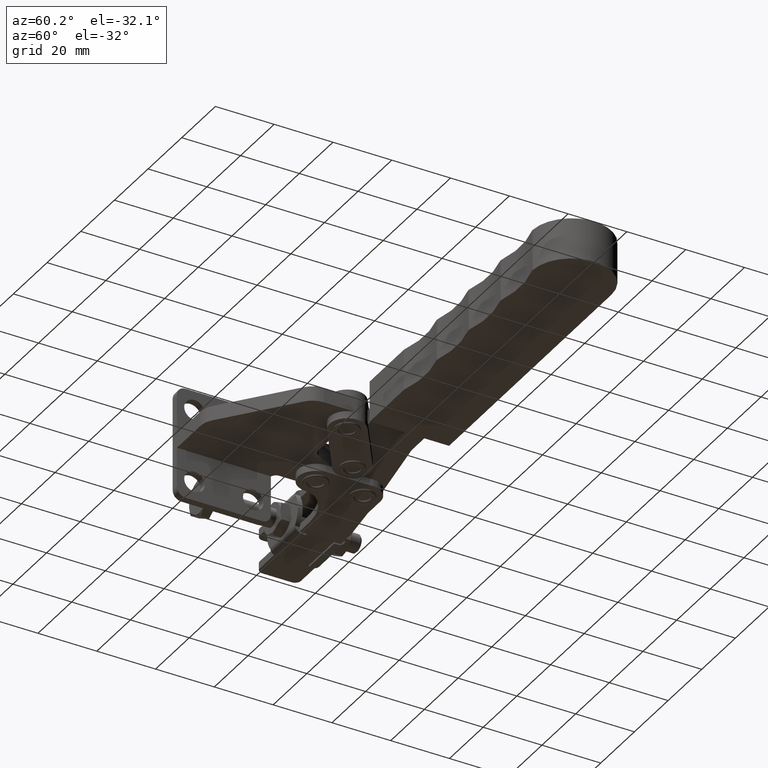
[diagram: clean part render]
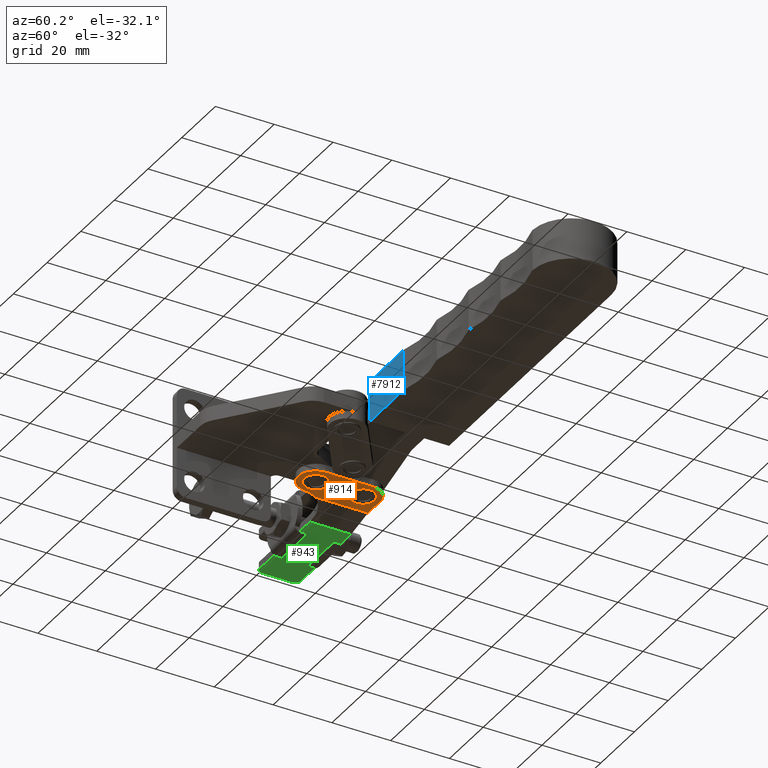
[diagram: same view with three faces highlighted in distinct colors, each labeled with its STEP entity id]
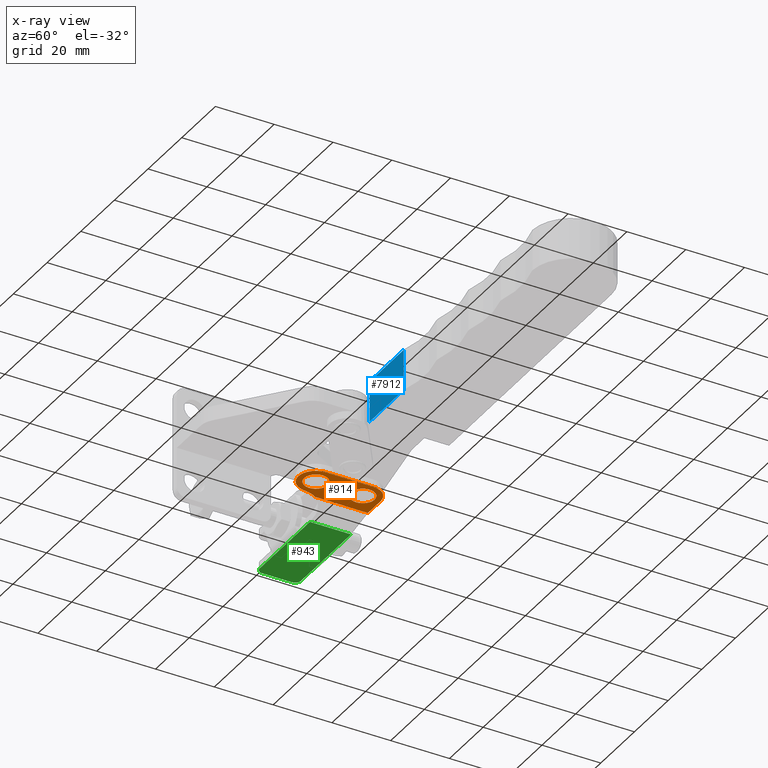
[diagram: x-ray of the same camera — body ghosted, the three highlighted faces saturated]
A machine part, auxiliary view with three faces highlighted in distinct colors.
The next image is the same camera in x-ray (body ghosted, the three faces saturated) — at least one of them is partly hidden behind the body in this view.
Their STEP definitions:

[orange] entity #914 — the highlighted planar face has unit normal (-0, -0, 1).
#131 = AXIS2_PLACEMENT_3D ( 'NONE', #2588, #7631, #7378 ) ;
#272 = VERTEX_POINT ( 'NONE', #4152 ) ;
#439 = ORIENTED_EDGE ( 'NONE', *, *, #2890, .F. ) ;
#461 = VERTEX_POINT ( 'NONE', #4128 ) ;
#523 = ORIENTED_EDGE ( 'NONE', *, *, #9479, .F. ) ;
#610 = LINE ( 'NONE', #6844, #9451 ) ;
#914 = ADVANCED_FACE ( 'NONE', ( #8964, #945, #5301 ), #9612, .F. ) ;
#945 = FACE_OUTER_BOUND ( 'NONE', #7038, .T. ) ;
#1327 = EDGE_CURVE ( 'NONE', #2943, #2703, #5539, .T. ) ;
#1363 = CARTESIAN_POINT ( 'NONE',  ( 10.00000000000408200, 43.00000000000160600, -5.000000000001120000 ) ) ;
#1426 = VERTEX_POINT ( 'NONE', #4352 ) ;
#1461 = ORIENTED_EDGE ( 'NONE', *, *, #1327, .F. ) ;
#1463 = AXIS2_PLACEMENT_3D ( 'NONE', #4239, #3604, #6598 ) ;
#1594 = ORIENTED_EDGE ( 'NONE', *, *, #7895, .T. ) ;
#1701 = EDGE_CURVE ( 'NONE', #9554, #1426, #2281, .T. ) ;
#1925 = DIRECTION ( 'NONE',  ( -0.9999999996937321000, 2.474946245861751200E-005, -1.460058925613811300E-014 ) ) ;
#2001 = DIRECTION ( 'NONE',  ( -1.464944035411824900E-014, -3.812519792265744100E-017, 1.000000000000000000 ) ) ;
#2046 = AXIS2_PLACEMENT_3D ( 'NONE', #9986, #2001, #5801 ) ;
#2186 = VERTEX_POINT ( 'NONE', #5302 ) ;
#2263 = CARTESIAN_POINT ( 'NONE',  ( 10.00054448817817000, 64.99999999326384200, -5.000000000001120000 ) ) ;
#2275 = EDGE_LOOP ( 'NONE', ( #4613, #523 ) ) ;
#2279 = DIRECTION ( 'NONE',  ( 1.464944035411830900E-014, 3.812519792265743500E-017, -1.000000000000000000 ) ) ;
#2281 = CIRCLE ( 'NONE', #5759, 6.000000000000018700 ) ;
#2550 = DIRECTION ( 'NONE',  ( -2.474946245868171700E-005, -0.9999999996937321000, -3.848776368506596200E-017 ) ) ;
#2588 = CARTESIAN_POINT ( 'NONE',  ( 10.00000000000315800, 43.00000000000179100, -5.000000000001121800 ) ) ;
#2601 = VERTEX_POINT ( 'NONE', #7783 ) ;
#2703 = VERTEX_POINT ( 'NONE', #5463 ) ;
#2790 = CIRCLE ( 'NONE', #1463, 8.999999999999925400 ) ;
#2890 = EDGE_CURVE ( 'NONE', #2703, #2943, #9564, .T. ) ;
#2943 = VERTEX_POINT ( 'NONE', #5451 ) ;
#3044 = DIRECTION ( 'NONE',  ( 1.464944035411830900E-014, 3.812519792265743500E-017, -1.000000000000000000 ) ) ;
#3218 = LINE ( 'NONE', #8006, #7070 ) ;
#3263 = DIRECTION ( 'NONE',  ( 1.464944035411830900E-014, 3.812519792265743500E-017, -1.000000000000000000 ) ) ;
#3291 = EDGE_CURVE ( 'NONE', #6960, #9554, #610, .T. ) ;
#3345 = ORIENTED_EDGE ( 'NONE', *, *, #5014, .F. ) ;
#3359 = CIRCLE ( 'NONE', #131, 4.000000000000000000 ) ;
#3604 = DIRECTION ( 'NONE',  ( -1.464944035411830900E-014, -3.812519792265743500E-017, 1.000000000000000000 ) ) ;
#3725 = CARTESIAN_POINT ( 'NONE',  ( 10.00039599140219300, 58.99999999510152500, -5.000000000001121800 ) ) ;
#3741 = DIRECTION ( 'NONE',  ( 1.000000000000000000, 0.0000000000000000000, 1.474514954580286000E-014 ) ) ;
#4128 = CARTESIAN_POINT ( 'NONE',  ( 2.500099615977045900, 47.02506802696223100, -5.000000000001230100 ) ) ;
#4152 = CARTESIAN_POINT ( 'NONE',  ( 14.00000000000315800, 43.00000000000179100, -5.000000000001062300 ) ) ;
#4177 = ORIENTED_EDGE ( 'NONE', *, *, #3291, .T. ) ;
#4239 = CARTESIAN_POINT ( 'NONE',  ( -4.966654291970205500, 42.00037041634398300, -5.000000000001342000 ) ) ;
#4352 = CARTESIAN_POINT ( 'NONE',  ( 16.00039598956583500, 58.99985149832662800, -5.000000000001034700 ) ) ;
#4392 = AXIS2_PLACEMENT_3D ( 'NONE', #1363, #3263, #1925 ) ;
#4487 = DIRECTION ( 'NONE',  ( 1.464944035411830900E-014, 3.812519792265743500E-017, -1.000000000000000000 ) ) ;
#4608 = CARTESIAN_POINT ( 'NONE',  ( 2.500544490475105500, 65.00018561423220800, -5.000000000001231000 ) ) ;
#4613 = ORIENTED_EDGE ( 'NONE', *, *, #5731, .F. ) ;
#4782 = CARTESIAN_POINT ( 'NONE',  ( 10.00039599140219300, 58.99999999510152500, -5.000000000001121800 ) ) ;
#4953 = CARTESIAN_POINT ( 'NONE',  ( 2.500544490475105500, 65.00018561423220800, -5.000000000001231000 ) ) ;
#5001 = DIRECTION ( 'NONE',  ( -2.474946245868171700E-005, -0.9999999996937321000, -3.848776368506596200E-017 ) ) ;
#5014 = EDGE_CURVE ( 'NONE', #6960, #461, #5514, .T. ) ;
#5301 = FACE_BOUND ( 'NONE', #7183, .T. ) ;
#5302 = CARTESIAN_POINT ( 'NONE',  ( 6.000000000003159300, 43.00000000000179100, -5.000000000001180400 ) ) ;
#5451 = CARTESIAN_POINT ( 'NONE',  ( 14.00039599140219300, 58.99999999510152500, -5.000000000001062300 ) ) ;
#5463 = CARTESIAN_POINT ( 'NONE',  ( 6.000395991402193400, 58.99999999510152500, -5.000000000001180400 ) ) ;
#5480 = VECTOR ( 'NONE', #5001, 1000.000000000000000 ) ;
#5514 = LINE ( 'NONE', #4953, #5480 ) ;
#5539 = CIRCLE ( 'NONE', #9996, 4.000000000000000000 ) ;
#5570 = DIRECTION ( 'NONE',  ( 1.464944035411830900E-014, 3.812519792265743500E-017, -1.000000000000000000 ) ) ;
#5731 = EDGE_CURVE ( 'NONE', #272, #2186, #3359, .T. ) ;
#5759 = AXIS2_PLACEMENT_3D ( 'NONE', #8847, #3044, #7872 ) ;
#5801 = DIRECTION ( 'NONE',  ( -0.9999999996937321000, 2.474946245868171700E-005, -1.464943940605344000E-014 ) ) ;
#5922 = EDGE_CURVE ( 'NONE', #2601, #461, #2790, .T. ) ;
#6598 = DIRECTION ( 'NONE',  ( -0.9999999996937319900, 2.474946246247267800E-005, -1.464877601935982600E-014 ) ) ;
#6755 = ORIENTED_EDGE ( 'NONE', *, *, #9835, .T. ) ;
#6844 = CARTESIAN_POINT ( 'NONE',  ( 2.500544490475105500, 65.00018561423220800, -5.000000000001231000 ) ) ;
#6960 = VERTEX_POINT ( 'NONE', #4608 ) ;
#7029 = ORIENTED_EDGE ( 'NONE', *, *, #5922, .T. ) ;
#7038 = EDGE_LOOP ( 'NONE', ( #8185, #6755, #1594, #7029, #3345, #4177 ) ) ;
#7070 = VECTOR ( 'NONE', #2550, 1000.000000000000000 ) ;
#7183 = EDGE_LOOP ( 'NONE', ( #1461, #439 ) ) ;
#7378 = DIRECTION ( 'NONE',  ( 1.000000000000000000, 0.0000000000000000000, 1.474514954580286000E-014 ) ) ;
#7631 = DIRECTION ( 'NONE',  ( 1.464944035411830900E-014, 3.812519792265743500E-017, -1.000000000000000000 ) ) ;
#7697 = CARTESIAN_POINT ( 'NONE',  ( 15.99999999816649400, 42.99985150322685700, -5.000000000001033000 ) ) ;
#7733 = AXIS2_PLACEMENT_3D ( 'NONE', #4782, #2279, #8862 ) ;
#7783 = CARTESIAN_POINT ( 'NONE',  ( 4.013338283214361400, 42.60014816653852400, -5.000000000001209700 ) ) ;
#7872 = DIRECTION ( 'NONE',  ( -0.9999999996937321000, 2.474946245861745500E-005, -1.460058925613808100E-014 ) ) ;
#7895 = EDGE_CURVE ( 'NONE', #8449, #2601, #9168, .T. ) ;
#8006 = CARTESIAN_POINT ( 'NONE',  ( 16.00054448634059400, 64.99985149648904300, -5.000000000001034700 ) ) ;
#8185 = ORIENTED_EDGE ( 'NONE', *, *, #1701, .T. ) ;
#8432 = CIRCLE ( 'NONE', #8737, 4.000000000000000000 ) ;
#8449 = VERTEX_POINT ( 'NONE', #7697 ) ;
#8737 = AXIS2_PLACEMENT_3D ( 'NONE', #9159, #4487, #9937 ) ;
#8847 = CARTESIAN_POINT ( 'NONE',  ( 10.00039599140343100, 58.99999999510137600, -5.000000000001120000 ) ) ;
#8862 = DIRECTION ( 'NONE',  ( 1.000000000000000000, 0.0000000000000000000, 1.474514954580286000E-014 ) ) ;
#8964 = FACE_BOUND ( 'NONE', #2275, .T. ) ;
#9112 = DIRECTION ( 'NONE',  ( 0.9999999996937321000, -2.474946245868171700E-005, 1.464943940605344300E-014 ) ) ;
#9159 = CARTESIAN_POINT ( 'NONE',  ( 10.00000000000315800, 43.00000000000179100, -5.000000000001121800 ) ) ;
#9168 = CIRCLE ( 'NONE', #4392, 6.000000000000005300 ) ;
#9451 = VECTOR ( 'NONE', #9112, 1000.000000000000000 ) ;
#9479 = EDGE_CURVE ( 'NONE', #2186, #272, #8432, .T. ) ;
#9554 = VERTEX_POINT ( 'NONE', #2263 ) ;
#9564 = CIRCLE ( 'NONE', #7733, 4.000000000000000000 ) ;
#9612 = PLANE ( 'NONE',  #2046 ) ;
#9835 = EDGE_CURVE ( 'NONE', #1426, #8449, #3218, .T. ) ;
#9937 = DIRECTION ( 'NONE',  ( 1.000000000000000000, 0.0000000000000000000, 1.474514954580286000E-014 ) ) ;
#9986 = CARTESIAN_POINT ( 'NONE',  ( 2.500544490475105500, 65.00018561423220800, -5.000000000001231000 ) ) ;
#9996 = AXIS2_PLACEMENT_3D ( 'NONE', #3725, #5570, #3741 ) ;

[blue] entity #7912 — the highlighted planar face has unit normal (0.0013, 1, 0).
#140 = EDGE_CURVE ( 'NONE', #1187, #3826, #5844, .T. ) ;
#208 = VECTOR ( 'NONE', #4826, 1000.000000000000100 ) ;
#568 = DIRECTION ( 'NONE',  ( 0.9999991119752942300, -0.001332684742512857200, 1.108918617664399500E-014 ) ) ;
#1187 = VERTEX_POINT ( 'NONE', #4901 ) ;
#1759 = CARTESIAN_POINT ( 'NONE',  ( 49.55187293503388400, 38.64838095249417900, -7.000000000000735400 ) ) ;
#1889 = CARTESIAN_POINT ( 'NONE',  ( 69.73006471228593700, 38.62148976030108800, 6.999999999999484900 ) ) ;
#2044 = EDGE_CURVE ( 'NONE', #3826, #5513, #5109, .T. ) ;
#2335 = DIRECTION ( 'NONE',  ( 1.108958682839140700E-014, 2.932455875418911200E-016, -1.000000000000000000 ) ) ;
#2611 = CARTESIAN_POINT ( 'NONE',  ( 69.73006471228593700, 38.62148976030108800, 6.999999999999484900 ) ) ;
#3776 = CARTESIAN_POINT ( 'NONE',  ( 49.55187293503373500, 38.64838095249417900, 6.999999999999261000 ) ) ;
#3826 = VERTEX_POINT ( 'NONE', #9701 ) ;
#4013 = EDGE_CURVE ( 'NONE', #6260, #5513, #8605, .T. ) ;
#4189 = EDGE_CURVE ( 'NONE', #1187, #6260, #8199, .T. ) ;
#4826 = DIRECTION ( 'NONE',  ( 0.9999991119752942300, -0.001332684742512857200, 1.108918617664399500E-014 ) ) ;
#4901 = CARTESIAN_POINT ( 'NONE',  ( 49.55187293503373500, 38.64838095249417900, 6.999999999999261000 ) ) ;
#5109 = LINE ( 'NONE', #1889, #8668 ) ;
#5169 = CARTESIAN_POINT ( 'NONE',  ( 69.73006471228593700, 38.62148976030108800, 6.999999999999484900 ) ) ;
#5513 = VERTEX_POINT ( 'NONE', #6221 ) ;
#5844 = LINE ( 'NONE', #2611, #208 ) ;
#5984 = ORIENTED_EDGE ( 'NONE', *, *, #4013, .T. ) ;
#6221 = CARTESIAN_POINT ( 'NONE',  ( 69.73006471228607900, 38.62148976030109500, -7.000000000000511600 ) ) ;
#6260 = VERTEX_POINT ( 'NONE', #1759 ) ;
#6906 = ORIENTED_EDGE ( 'NONE', *, *, #2044, .F. ) ;
#7327 = CARTESIAN_POINT ( 'NONE',  ( 69.73006471228607900, 38.62148976030109500, -7.000000000000511600 ) ) ;
#7565 = ORIENTED_EDGE ( 'NONE', *, *, #140, .F. ) ;
#7632 = DIRECTION ( 'NONE',  ( 1.108958682839140700E-014, 2.932455875418911200E-016, -1.000000000000000000 ) ) ;
#7882 = DIRECTION ( 'NONE',  ( 0.001332684742512857400, 0.9999991119752942300, 3.080242502995333400E-016 ) ) ;
#7912 = ADVANCED_FACE ( 'NONE', ( #9598 ), #9100, .F. ) ;
#7941 = ORIENTED_EDGE ( 'NONE', *, *, #4189, .T. ) ;
#8153 = VECTOR ( 'NONE', #2335, 1000.000000000000000 ) ;
#8199 = LINE ( 'NONE', #3776, #8153 ) ;
#8605 = LINE ( 'NONE', #7327, #8655 ) ;
#8655 = VECTOR ( 'NONE', #568, 1000.000000000000100 ) ;
#8668 = VECTOR ( 'NONE', #7632, 1000.000000000000000 ) ;
#9100 = PLANE ( 'NONE',  #9629 ) ;
#9249 = EDGE_LOOP ( 'NONE', ( #5984, #6906, #7565, #7941 ) ) ;
#9598 = FACE_OUTER_BOUND ( 'NONE', #9249, .T. ) ;
#9629 = AXIS2_PLACEMENT_3D ( 'NONE', #5169, #7882, #9871 ) ;
#9701 = CARTESIAN_POINT ( 'NONE',  ( 69.73006471228593700, 38.62148976030108800, 6.999999999999484900 ) ) ;
#9871 = DIRECTION ( 'NONE',  ( -1.108958682839140600E-014, -2.932455875418911600E-016, 1.000000000000000000 ) ) ;

[green] entity #943 — the highlighted planar face has unit normal (-0, -0, 1).
#388 = ORIENTED_EDGE ( 'NONE', *, *, #4833, .F. ) ;
#582 = LINE ( 'NONE', #1553, #4430 ) ;
#943 = ADVANCED_FACE ( 'NONE', ( #6625 ), #3567, .F. ) ;
#1012 = AXIS2_PLACEMENT_3D ( 'NONE', #7916, #9784, #9172 ) ;
#1089 = VERTEX_POINT ( 'NONE', #4746 ) ;
#1216 = DIRECTION ( 'NONE',  ( -0.9999999996937321000, 2.474946245868171700E-005, -1.112604752420395600E-014 ) ) ;
#1553 = CARTESIAN_POINT ( 'NONE',  ( -7.499455506462221700, 65.00043310885679700, -7.000000000001489500 ) ) ;
#1702 = CARTESIAN_POINT ( 'NONE',  ( -37.29950499626029600, 63.00117064345064900, -7.000000000001821700 ) ) ;
#1710 = VERTEX_POINT ( 'NONE', #9557 ) ;
#1722 = DIRECTION ( 'NONE',  ( -1.112604847334791200E-014, -3.821239997776460700E-017, 1.000000000000000000 ) ) ;
#1756 = DIRECTION ( 'NONE',  ( 0.9999999996937321000, -2.474946245861753600E-005, 1.127570259384924800E-014 ) ) ;
#2169 = DIRECTION ( 'NONE',  ( -1.112604847334786800E-014, -3.821239997776461400E-017, 1.000000000000000000 ) ) ;
#2523 = EDGE_CURVE ( 'NONE', #5580, #1089, #5655, .T. ) ;
#3203 = CARTESIAN_POINT ( 'NONE',  ( -39.29975249027230400, 53.00122014543813300, -7.000000000001843900 ) ) ;
#3226 = ORIENTED_EDGE ( 'NONE', *, *, #6795, .F. ) ;
#3442 = DIRECTION ( 'NONE',  ( 0.9999999996937321000, -2.474946245868171700E-005, 1.112604752420395700E-014 ) ) ;
#3567 = PLANE ( 'NONE',  #3618 ) ;
#3617 = EDGE_CURVE ( 'NONE', #6614, #6346, #9342, .T. ) ;
#3618 = AXIS2_PLACEMENT_3D ( 'NONE', #6994, #2169, #1216 ) ;
#4220 = CARTESIAN_POINT ( 'NONE',  ( -39.29945549672280700, 65.00122014176301400, -7.000000000001843000 ) ) ;
#4224 = CARTESIAN_POINT ( 'NONE',  ( -39.29950499564773000, 63.00122014237558000, -7.000000000001844700 ) ) ;
#4430 = VECTOR ( 'NONE', #6730, 1000.000000000000000 ) ;
#4746 = CARTESIAN_POINT ( 'NONE',  ( -7.499455506462221700, 65.00043310885679700, -7.000000000001489500 ) ) ;
#4833 = EDGE_CURVE ( 'NONE', #5580, #6614, #6345, .T. ) ;
#4856 = CIRCLE ( 'NONE', #1012, 2.000000000000006700 ) ;
#5259 = VECTOR ( 'NONE', #5658, 1000.000000000000000 ) ;
#5580 = VERTEX_POINT ( 'NONE', #6241 ) ;
#5655 = LINE ( 'NONE', #4220, #5770 ) ;
#5658 = DIRECTION ( 'NONE',  ( 0.9999999996937321000, -2.474946245868171700E-005, 1.110316261169300400E-014 ) ) ;
#5770 = VECTOR ( 'NONE', #3442, 1000.000000000000000 ) ;
#5877 = CARTESIAN_POINT ( 'NONE',  ( -7.499801998936572300, 51.00043311314445300, -7.000000000001481500 ) ) ;
#6217 = CARTESIAN_POINT ( 'NONE',  ( -39.29945549672280700, 65.00122014176301400, -7.000000000001843000 ) ) ;
#6241 = CARTESIAN_POINT ( 'NONE',  ( -37.29945549733535200, 65.00117064283811900, -7.000000000001821700 ) ) ;
#6345 = CIRCLE ( 'NONE', #6455, 1.999999999999999800 ) ;
#6346 = VERTEX_POINT ( 'NONE', #3203 ) ;
#6455 = AXIS2_PLACEMENT_3D ( 'NONE', #1702, #1722, #1756 ) ;
#6614 = VERTEX_POINT ( 'NONE', #4224 ) ;
#6625 = FACE_OUTER_BOUND ( 'NONE', #7062, .T. ) ;
#6674 = ORIENTED_EDGE ( 'NONE', *, *, #9109, .T. ) ;
#6730 = DIRECTION ( 'NONE',  ( -2.474946245868171700E-005, -0.9999999996937321000, -3.848776368506596200E-017 ) ) ;
#6795 = EDGE_CURVE ( 'NONE', #6346, #1710, #4856, .T. ) ;
#6994 = CARTESIAN_POINT ( 'NONE',  ( -39.29945549672280700, 65.00122014176301400, -7.000000000001843000 ) ) ;
#7062 = EDGE_LOOP ( 'NONE', ( #7266, #3226, #7903, #388, #7138, #6674 ) ) ;
#7138 = ORIENTED_EDGE ( 'NONE', *, *, #2523, .T. ) ;
#7266 = ORIENTED_EDGE ( 'NONE', *, *, #9803, .F. ) ;
#7903 = ORIENTED_EDGE ( 'NONE', *, *, #3617, .F. ) ;
#7916 = CARTESIAN_POINT ( 'NONE',  ( -37.29975249088486300, 53.00117064651321600, -7.000000000001813700 ) ) ;
#8754 = CARTESIAN_POINT ( 'NONE',  ( -37.29980198980977200, 51.00117064712571800, -7.000000000001815400 ) ) ;
#9109 = EDGE_CURVE ( 'NONE', #1089, #9389, #582, .T. ) ;
#9172 = DIRECTION ( 'NONE',  ( 0.9999999996937321000, -2.474946245861745100E-005, 1.127570259384920800E-014 ) ) ;
#9224 = VECTOR ( 'NONE', #9967, 1000.000000000000000 ) ;
#9342 = LINE ( 'NONE', #6217, #9224 ) ;
#9389 = VERTEX_POINT ( 'NONE', #5877 ) ;
#9557 = CARTESIAN_POINT ( 'NONE',  ( -37.29980198980977200, 51.00117064712571800, -7.000000000001815400 ) ) ;
#9659 = LINE ( 'NONE', #8754, #5259 ) ;
#9784 = DIRECTION ( 'NONE',  ( -1.112604847334791200E-014, -3.821239997776460700E-017, 1.000000000000000000 ) ) ;
#9803 = EDGE_CURVE ( 'NONE', #1710, #9389, #9659, .T. ) ;
#9967 = DIRECTION ( 'NONE',  ( -2.474946245868171700E-005, -0.9999999996937321000, -3.848776368506596200E-017 ) ) ;